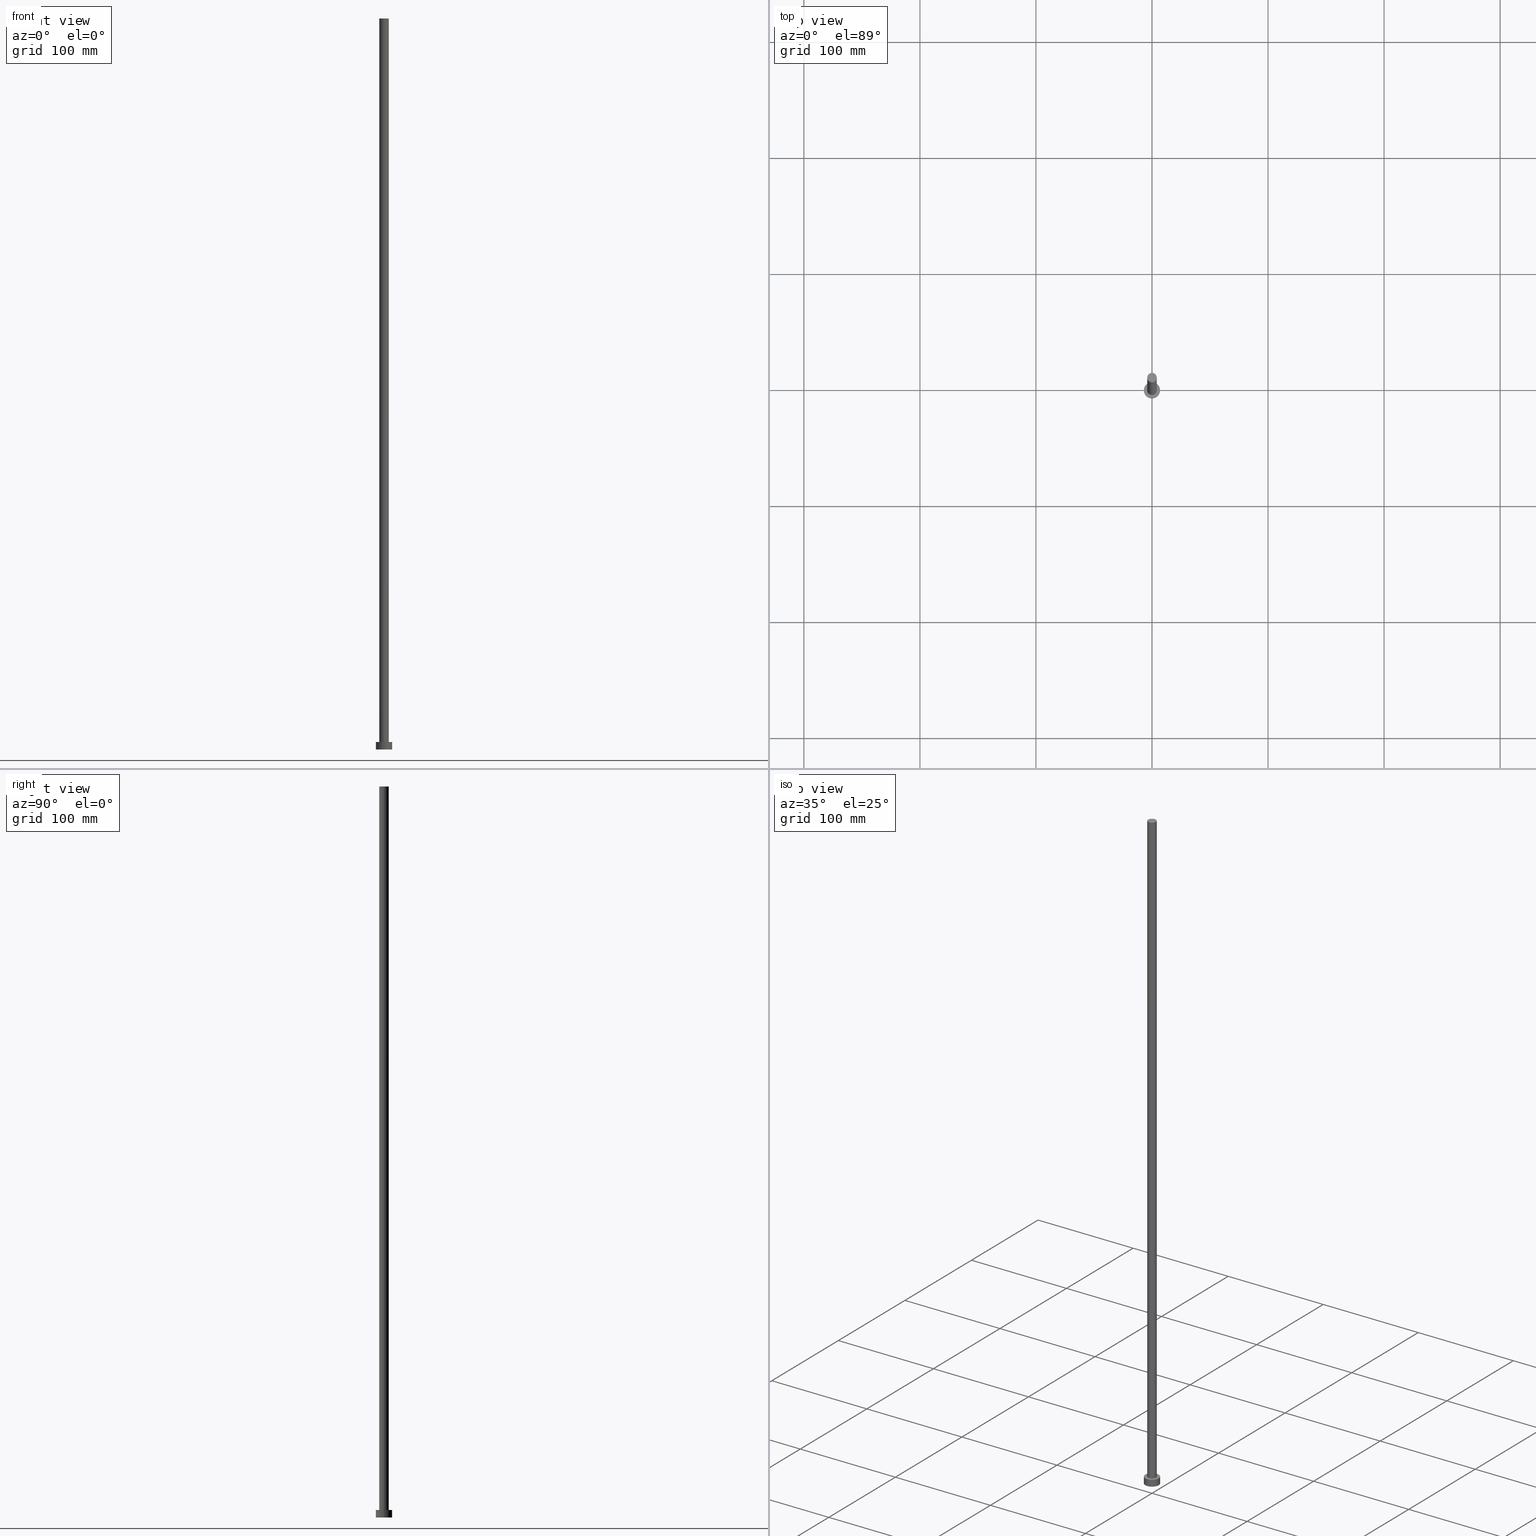
[diagram: canonical four-view strip — front | top / right | iso, engineering-drawing reading convention]
A machine part, canonical four-view strip (front | top / right | iso — engineering-drawing reading convention). The complete STEP part file that produces these views, byte-faithful:
ISO-10303-21;
HEADER;
FILE_DESCRIPTION (( 'STEP AP203' ),
    '1' );
FILE_NAME ('f5c1.STEP',
    '2023-02-13T14:16:04',
    ( '' ),
    ( '' ),
    'SwSTEP 2.0',
    'SolidWorks 2019',
    '' );
FILE_SCHEMA (( 'CONFIG_CONTROL_DESIGN' ));
ENDSEC;

DATA;
#1 = DIRECTION ( 'NONE',  ( 0.000000000000000000, 0.000000000000000000, 1.000000000000000000 ) ) ;
#2 = CARTESIAN_POINT ( 'NONE',  ( 0.000000000000000000, 0.000000000000000000, 0.000000000000000000 ) ) ;
#3 = EDGE_LOOP ( 'NONE', ( #176, #126, #90, #240 ) ) ;
#4 = CARTESIAN_POINT ( 'NONE',  ( -7.000000000000000000, 0.000000000000000000, 6.500000000000000000 ) ) ;
#5 = VERTEX_POINT ( 'NONE', #83 ) ;
#6 = PERSON_AND_ORGANIZATION ( #82, #40 ) ;
#7 = DIRECTION ( 'NONE',  ( -0.000000000000000000, -0.000000000000000000, -1.000000000000000000 ) ) ;
#8 = CIRCLE ( 'NONE', #249, 7.000000000000000000 ) ;
#9 = PERSON_AND_ORGANIZATION ( #82, #40 ) ;
#10 = CARTESIAN_POINT ( 'NONE',  ( 0.000000000000000000, 0.000000000000000000, 0.000000000000000000 ) ) ;
#11 = AXIS2_PLACEMENT_3D ( 'NONE', #147, #209, #33 ) ;
#12 = UNCERTAINTY_MEASURE_WITH_UNIT (LENGTH_MEASURE( 1.000000000000000082E-05 ), #20, 'distance_accuracy_value', 'NONE');
#13 = DIRECTION ( 'NONE',  ( 1.000000000000000000, 0.000000000000000000, 0.000000000000000000 ) ) ;
#14 = CARTESIAN_POINT ( 'NONE',  ( 7.000000000000000000, 8.572527594031471218E-16, 0.000000000000000000 ) ) ;
#15 = ORIENTED_EDGE ( 'NONE', *, *, #127, .T. ) ;
#16 = EDGE_CURVE ( 'NONE', #205, #178, #27, .T. ) ;
#17 = PERSON_AND_ORGANIZATION ( #82, #40 ) ;
#18 = CALENDAR_DATE ( 2023, 13, 2 ) ;
#19 = CYLINDRICAL_SURFACE ( 'NONE', #133, 4.099999999999999645 ) ;
#20 =( LENGTH_UNIT ( ) NAMED_UNIT ( * ) SI_UNIT ( .MILLI., .METRE. ) );
#21 = ORIENTED_EDGE ( 'NONE', *, *, #16, .F. ) ;
#22 = AXIS2_PLACEMENT_3D ( 'NONE', #219, #203, #47 ) ;
#23 = ORIENTED_EDGE ( 'NONE', *, *, #202, .F. ) ;
#24 = FACE_OUTER_BOUND ( 'NONE', #163, .T. ) ;
#25 = APPROVAL ( #28, 'NEUR�EN�' ) ;
#26 =( NAMED_UNIT ( * ) SI_UNIT ( $, .STERADIAN. ) SOLID_ANGLE_UNIT ( ) );
#27 = CIRCLE ( 'NONE', #239, 7.000000000000000000 ) ;
#28 = APPROVAL_STATUS ( 'not_yet_approved' ) ;
#29 = DESIGN_CONTEXT ( 'detailed design', #242, 'design' ) ;
#30 = ADVANCED_BREP_SHAPE_REPRESENTATION ( 'f5c1', ( #155, #70 ), #46 ) ;
#31 = DATE_TIME_ROLE ( 'classification_date' ) ;
#32 = COORDINATED_UNIVERSAL_TIME_OFFSET ( 1, 0, .AHEAD. ) ;
#33 = DIRECTION ( 'NONE',  ( 1.000000000000000000, 0.000000000000000000, 0.000000000000000000 ) ) ;
#34 = DIRECTION ( 'NONE',  ( -0.000000000000000000, -0.000000000000000000, -1.000000000000000000 ) ) ;
#35 = DIRECTION ( 'NONE',  ( 0.000000000000000000, 0.000000000000000000, 1.000000000000000000 ) ) ;
#36 = DIRECTION ( 'NONE',  ( 1.000000000000000000, 0.000000000000000000, 0.000000000000000000 ) ) ;
#37 = CC_DESIGN_PERSON_AND_ORGANIZATION_ASSIGNMENT ( #184, #250, ( #115 ) ) ;
#38 = CARTESIAN_POINT ( 'NONE',  ( 7.000000000000000000, 8.572527594031471218E-16, 6.500000000000000000 ) ) ;
#39 = CIRCLE ( 'NONE', #148, 4.099999999999999645 ) ;
#40 = ORGANIZATION ( 'NEUR�EN�', 'NEUR�EN�', '' ) ;
#41 = DIRECTION ( 'NONE',  ( 1.000000000000000000, 0.000000000000000000, 0.000000000000000000 ) ) ;
#42 = FACE_OUTER_BOUND ( 'NONE', #106, .T. ) ;
#43 = PERSON_AND_ORGANIZATION_ROLE ( 'creator' ) ;
#44 = EDGE_CURVE ( 'NONE', #179, #5, #139, .T. ) ;
#45 = ORIENTED_EDGE ( 'NONE', *, *, #114, .T. ) ;
#46 =( GEOMETRIC_REPRESENTATION_CONTEXT ( 3 ) GLOBAL_UNCERTAINTY_ASSIGNED_CONTEXT ( ( #12 ) ) GLOBAL_UNIT_ASSIGNED_CONTEXT ( ( #20, #216, #26 ) ) REPRESENTATION_CONTEXT ( 'NONE', 'WORKASPACE' ) );
#47 = DIRECTION ( 'NONE',  ( 1.000000000000000000, 0.000000000000000000, 0.000000000000000000 ) ) ;
#48 = DATE_AND_TIME ( #64, #207 ) ;
#49 = CARTESIAN_POINT ( 'NONE',  ( 7.000000000000000000, 8.572527594031471218E-16, 6.500000000000000000 ) ) ;
#50 = APPLICATION_PROTOCOL_DEFINITION ( 'international standard', 'config_control_design', 1994, #242 ) ;
#51 = ORIENTED_EDGE ( 'NONE', *, *, #185, .T. ) ;
#52 = DIRECTION ( 'NONE',  ( 0.000000000000000000, 0.000000000000000000, 1.000000000000000000 ) ) ;
#53 = PERSON_AND_ORGANIZATION_ROLE ( 'classification_officer' ) ;
#54 = DATE_AND_TIME ( #18, #135 ) ;
#55 = DIRECTION ( 'NONE',  ( 0.000000000000000000, 0.000000000000000000, 1.000000000000000000 ) ) ;
#56 = CIRCLE ( 'NONE', #11, 7.000000000000000000 ) ;
#57 = DIRECTION ( 'NONE',  ( -1.000000000000000000, 0.000000000000000000, 0.000000000000000000 ) ) ;
#58 = DIRECTION ( 'NONE',  ( 1.000000000000000000, 0.000000000000000000, 0.000000000000000000 ) ) ;
#59 = VERTEX_POINT ( 'NONE', #248 ) ;
#60 = CLOSED_SHELL ( 'NONE', ( #134, #65, #108, #212, #73, #63, #122 ) ) ;
#61 = DIRECTION ( 'NONE',  ( -1.000000000000000000, 0.000000000000000000, 0.000000000000000000 ) ) ;
#62 = LOCAL_TIME ( 15, 16, 4.000000000000000000, #119 ) ;
#63 = ADVANCED_FACE ( 'NONE', ( #132 ), #19, .T. ) ;
#64 = CALENDAR_DATE ( 2023, 13, 2 ) ;
#65 = ADVANCED_FACE ( 'NONE', ( #93 ), #189, .T. ) ;
#66 = PERSON_AND_ORGANIZATION ( #82, #40 ) ;
#67 = DIRECTION ( 'NONE',  ( 0.000000000000000000, 0.000000000000000000, 1.000000000000000000 ) ) ;
#68 = PLANE ( 'NONE',  #218 ) ;
#69 = LOCAL_TIME ( 15, 16, 4.000000000000000000, #32 ) ;
#70 = AXIS2_PLACEMENT_3D ( 'NONE', #210, #52, #13 ) ;
#71 = CARTESIAN_POINT ( 'NONE',  ( 0.000000000000000000, 0.000000000000000000, 6.500000000000000000 ) ) ;
#72 = AXIS2_PLACEMENT_3D ( 'NONE', #71, #35, #41 ) ;
#73 = ADVANCED_FACE ( 'NONE', ( #159 ), #186, .F. ) ;
#74 = DIRECTION ( 'NONE',  ( -1.000000000000000000, 0.000000000000000000, 0.000000000000000000 ) ) ;
#75 = CIRCLE ( 'NONE', #229, 7.000000000000000000 ) ;
#76 = COORDINATED_UNIVERSAL_TIME_OFFSET ( 1, 0, .AHEAD. ) ;
#77 = ORIENTED_EDGE ( 'NONE', *, *, #185, .F. ) ;
#78 = EDGE_LOOP ( 'NONE', ( #21, #117 ) ) ;
#79 = EDGE_LOOP ( 'NONE', ( #194, #102, #196, #237 ) ) ;
#80 = EDGE_CURVE ( 'NONE', #5, #179, #252, .T. ) ;
#81 = VECTOR ( 'NONE', #34, 1000.000000000000000 ) ;
#82 = PERSON ( 'NEUR�EN�', 'NEUR�EN�', 'NEUR�EN�', ('NEUR�EN�'), ('NEUR�EN�'), ('NEUR�EN�') ) ;
#83 = CARTESIAN_POINT ( 'NONE',  ( -4.099999999999999645, 0.000000000000000000, 6.500000000000000000 ) ) ;
#84 = APPROVAL_DATE_TIME ( #140, #25 ) ;
#85 = DIRECTION ( 'NONE',  ( 1.000000000000000000, 0.000000000000000000, -0.000000000000000000 ) ) ;
#86 = SECURITY_CLASSIFICATION_LEVEL ( 'unclassified' ) ;
#87 = DIRECTION ( 'NONE',  ( -1.000000000000000000, 0.000000000000000000, 0.000000000000000000 ) ) ;
#88 = APPROVAL_DATE_TIME ( #152, #217 ) ;
#89 = CC_DESIGN_PERSON_AND_ORGANIZATION_ASSIGNMENT ( #6, #104, ( #113 ) ) ;
#90 = ORIENTED_EDGE ( 'NONE', *, *, #151, .T. ) ;
#91 = CARTESIAN_POINT ( 'NONE',  ( 4.099999999999999645, 5.021051876504146399E-16, 6.500000000000000000 ) ) ;
#92 = CALENDAR_DATE ( 2023, 13, 2 ) ;
#93 = FACE_OUTER_BOUND ( 'NONE', #79, .T. ) ;
#94 = AXIS2_PLACEMENT_3D ( 'NONE', #236, #255, #74 ) ;
#95 = DIRECTION ( 'NONE',  ( -0.000000000000000000, -0.000000000000000000, -1.000000000000000000 ) ) ;
#96 = CALENDAR_DATE ( 2023, 13, 2 ) ;
#97 = APPROVAL_ROLE ( '' ) ;
#98 = APPROVAL ( #144, 'NEUR�EN�' ) ;
#99 = CARTESIAN_POINT ( 'NONE',  ( 0.000000000000000000, 0.000000000000000000, 6.500000000000000000 ) ) ;
#100 = ORIENTED_EDGE ( 'NONE', *, *, #44, .F. ) ;
#101 = CC_DESIGN_APPROVAL ( #25, ( #224 ) ) ;
#102 = ORIENTED_EDGE ( 'NONE', *, *, #202, .T. ) ;
#103 = COORDINATED_UNIVERSAL_TIME_OFFSET ( 1, 0, .AHEAD. ) ;
#104 = PERSON_AND_ORGANIZATION_ROLE ( 'design_supplier' ) ;
#105 = CARTESIAN_POINT ( 'NONE',  ( -4.099999999999999645, 0.000000000000000000, 630.0000000000000000 ) ) ;
#106 = EDGE_LOOP ( 'NONE', ( #234, #45 ) ) ;
#107 = LINE ( 'NONE', #138, #158 ) ;
#108 = ADVANCED_FACE ( 'NONE', ( #141 ), #223, .T. ) ;
#109 = CARTESIAN_POINT ( 'NONE',  ( 4.099999999999999645, 5.021051876504146399E-16, 630.0000000000000000 ) ) ;
#110 = CARTESIAN_POINT ( 'NONE',  ( 0.000000000000000000, 0.000000000000000000, 630.0000000000000000 ) ) ;
#111 = APPLICATION_PROTOCOL_DEFINITION ( 'international standard', 'config_control_design', 1994, #230 ) ;
#112 = VECTOR ( 'NONE', #233, 1000.000000000000000 ) ;
#113 = PRODUCT_DEFINITION_FORMATION_WITH_SPECIFIED_SOURCE ( 'LIBOVOLN�', '', #115, .NOT_KNOWN. ) ;
#114 = EDGE_CURVE ( 'NONE', #121, #59, #243, .T. ) ;
#115 = PRODUCT ( 'f5c1', 'f5c1', '', ( #211 ) ) ;
#116 = EDGE_LOOP ( 'NONE', ( #23, #77, #15, #171 ) ) ;
#117 = ORIENTED_EDGE ( 'NONE', *, *, #208, .F. ) ;
#118 = DIRECTION ( 'NONE',  ( 1.000000000000000000, 0.000000000000000000, 0.000000000000000000 ) ) ;
#119 = COORDINATED_UNIVERSAL_TIME_OFFSET ( 1, 0, .AHEAD. ) ;
#120 = VERTEX_POINT ( 'NONE', #4 ) ;
#121 = VERTEX_POINT ( 'NONE', #220 ) ;
#122 = ADVANCED_FACE ( 'NONE', ( #42 ), #68, .T. ) ;
#123 = SECURITY_CLASSIFICATION ( '', '', #86 ) ;
#124 = CARTESIAN_POINT ( 'NONE',  ( 0.000000000000000000, 0.000000000000000000, 6.500000000000000000 ) ) ;
#125 = EDGE_CURVE ( 'NONE', #165, #120, #56, .T. ) ;
#126 = ORIENTED_EDGE ( 'NONE', *, *, #245, .F. ) ;
#127 = EDGE_CURVE ( 'NONE', #120, #205, #107, .T. ) ;
#128 = DIRECTION ( 'NONE',  ( 1.000000000000000000, 0.000000000000000000, 0.000000000000000000 ) ) ;
#129 = AXIS2_PLACEMENT_3D ( 'NONE', #110, #7, #87 ) ;
#130 = AXIS2_PLACEMENT_3D ( 'NONE', #99, #162, #61 ) ;
#131 = LINE ( 'NONE', #38, #187 ) ;
#132 = FACE_OUTER_BOUND ( 'NONE', #3, .T. ) ;
#133 = AXIS2_PLACEMENT_3D ( 'NONE', #193, #95, #57 ) ;
#134 = ADVANCED_FACE ( 'NONE', ( #232 ), #247, .T. ) ;
#135 = LOCAL_TIME ( 15, 16, 4.000000000000000000, #76 ) ;
#136 = ORIENTED_EDGE ( 'NONE', *, *, #44, .T. ) ;
#137 = CARTESIAN_POINT ( 'NONE',  ( -7.000000000000000000, 0.000000000000000000, 0.000000000000000000 ) ) ;
#138 = CARTESIAN_POINT ( 'NONE',  ( -7.000000000000000000, 0.000000000000000000, 6.500000000000000000 ) ) ;
#139 = CIRCLE ( 'NONE', #161, 4.099999999999999645 ) ;
#140 = DATE_AND_TIME ( #96, #221 ) ;
#141 = FACE_OUTER_BOUND ( 'NONE', #116, .T. ) ;
#142 = CC_DESIGN_PERSON_AND_ORGANIZATION_ASSIGNMENT ( #17, #156, ( #113 ) ) ;
#143 = LINE ( 'NONE', #105, #81 ) ;
#144 = APPROVAL_STATUS ( 'not_yet_approved' ) ;
#145 = DIRECTION ( 'NONE',  ( 0.000000000000000000, 0.000000000000000000, 1.000000000000000000 ) ) ;
#146 = AXIS2_PLACEMENT_3D ( 'NONE', #124, #67, #85 ) ;
#147 = CARTESIAN_POINT ( 'NONE',  ( 0.000000000000000000, 0.000000000000000000, 6.500000000000000000 ) ) ;
#148 = AXIS2_PLACEMENT_3D ( 'NONE', #235, #195, #160 ) ;
#149 = PERSON_AND_ORGANIZATION ( #82, #40 ) ;
#150 = AXIS2_PLACEMENT_3D ( 'NONE', #2, #180, #183 ) ;
#151 = EDGE_CURVE ( 'NONE', #59, #5, #143, .T. ) ;
#152 = DATE_AND_TIME ( #92, #69 ) ;
#153 = CARTESIAN_POINT ( 'NONE',  ( 0.000000000000000000, 0.000000000000000000, 6.500000000000000000 ) ) ;
#154 = CC_DESIGN_APPROVAL ( #98, ( #123 ) ) ;
#155 = MANIFOLD_SOLID_BREP ( 'P�idat vysunut�m3', #60 ) ;
#156 = PERSON_AND_ORGANIZATION_ROLE ( 'creator' ) ;
#157 = ORIENTED_EDGE ( 'NONE', *, *, #125, .T. ) ;
#158 = VECTOR ( 'NONE', #172, 1000.000000000000000 ) ;
#159 = FACE_OUTER_BOUND ( 'NONE', #78, .T. ) ;
#160 = DIRECTION ( 'NONE',  ( 1.000000000000000000, 0.000000000000000000, 0.000000000000000000 ) ) ;
#161 = AXIS2_PLACEMENT_3D ( 'NONE', #164, #244, #36 ) ;
#162 = DIRECTION ( 'NONE',  ( -0.000000000000000000, -0.000000000000000000, -1.000000000000000000 ) ) ;
#163 = EDGE_LOOP ( 'NONE', ( #51, #157 ) ) ;
#164 = CARTESIAN_POINT ( 'NONE',  ( 0.000000000000000000, 0.000000000000000000, 6.500000000000000000 ) ) ;
#165 = VERTEX_POINT ( 'NONE', #49 ) ;
#166 = CARTESIAN_POINT ( 'NONE',  ( 0.000000000000000000, 0.000000000000000000, 630.0000000000000000 ) ) ;
#167 = EDGE_LOOP ( 'NONE', ( #215, #190, #136, #173 ) ) ;
#168 = PERSON_AND_ORGANIZATION ( #82, #40 ) ;
#169 = APPROVAL_ROLE ( '' ) ;
#170 = DIRECTION ( 'NONE',  ( 1.000000000000000000, 0.000000000000000000, -0.000000000000000000 ) ) ;
#171 = ORIENTED_EDGE ( 'NONE', *, *, #16, .T. ) ;
#172 = DIRECTION ( 'NONE',  ( -0.000000000000000000, -0.000000000000000000, -1.000000000000000000 ) ) ;
#173 = ORIENTED_EDGE ( 'NONE', *, *, #151, .F. ) ;
#174 = CC_DESIGN_SECURITY_CLASSIFICATION ( #123, ( #113 ) ) ;
#175 = APPROVAL_PERSON_ORGANIZATION ( #66, #98, #254 ) ;
#176 = ORIENTED_EDGE ( 'NONE', *, *, #199, .F. ) ;
#177 = CARTESIAN_POINT ( 'NONE',  ( 0.000000000000000000, 0.000000000000000000, 0.000000000000000000 ) ) ;
#178 = VERTEX_POINT ( 'NONE', #14 ) ;
#179 = VERTEX_POINT ( 'NONE', #91 ) ;
#180 = DIRECTION ( 'NONE',  ( 0.000000000000000000, 0.000000000000000000, 1.000000000000000000 ) ) ;
#181 = APPROVAL_PERSON_ORGANIZATION ( #225, #25, #97 ) ;
#182 = COORDINATED_UNIVERSAL_TIME_OFFSET ( 1, 0, .AHEAD. ) ;
#183 = DIRECTION ( 'NONE',  ( 1.000000000000000000, 0.000000000000000000, -0.000000000000000000 ) ) ;
#184 = PERSON_AND_ORGANIZATION ( #82, #40 ) ;
#185 = EDGE_CURVE ( 'NONE', #120, #165, #75, .T. ) ;
#186 = PLANE ( 'NONE',  #150 ) ;
#187 = VECTOR ( 'NONE', #192, 1000.000000000000000 ) ;
#188 = CC_DESIGN_APPROVAL ( #217, ( #113 ) ) ;
#189 = CYLINDRICAL_SURFACE ( 'NONE', #94, 7.000000000000000000 ) ;
#190 = ORIENTED_EDGE ( 'NONE', *, *, #199, .T. ) ;
#191 = SHAPE_DEFINITION_REPRESENTATION ( #222, #30 ) ;
#192 = DIRECTION ( 'NONE',  ( -0.000000000000000000, -0.000000000000000000, -1.000000000000000000 ) ) ;
#193 = CARTESIAN_POINT ( 'NONE',  ( 0.000000000000000000, 0.000000000000000000, 630.0000000000000000 ) ) ;
#194 = ORIENTED_EDGE ( 'NONE', *, *, #125, .F. ) ;
#195 = DIRECTION ( 'NONE',  ( 0.000000000000000000, 0.000000000000000000, 1.000000000000000000 ) ) ;
#196 = ORIENTED_EDGE ( 'NONE', *, *, #208, .T. ) ;
#197 = FACE_BOUND ( 'NONE', #201, .T. ) ;
#198 = CALENDAR_DATE ( 2023, 13, 2 ) ;
#199 = EDGE_CURVE ( 'NONE', #121, #179, #214, .T. ) ;
#200 = ORIENTED_EDGE ( 'NONE', *, *, #80, .F. ) ;
#201 = EDGE_LOOP ( 'NONE', ( #200, #100 ) ) ;
#202 = EDGE_CURVE ( 'NONE', #165, #178, #131, .T. ) ;
#203 = DIRECTION ( 'NONE',  ( 0.000000000000000000, 0.000000000000000000, 1.000000000000000000 ) ) ;
#204 = CC_DESIGN_DATE_AND_TIME_ASSIGNMENT ( #48, #31, ( #123 ) ) ;
#205 = VERTEX_POINT ( 'NONE', #137 ) ;
#206 = APPROVAL_PERSON_ORGANIZATION ( #9, #217, #169 ) ;
#207 = LOCAL_TIME ( 15, 16, 4.000000000000000000, #182 ) ;
#208 = EDGE_CURVE ( 'NONE', #178, #205, #8, .T. ) ;
#209 = DIRECTION ( 'NONE',  ( 0.000000000000000000, 0.000000000000000000, 1.000000000000000000 ) ) ;
#210 = CARTESIAN_POINT ( 'NONE',  ( 0.000000000000000000, 0.000000000000000000, 0.000000000000000000 ) ) ;
#211 = MECHANICAL_CONTEXT ( 'NONE', #230, 'mechanical' ) ;
#212 = ADVANCED_FACE ( 'NONE', ( #197, #24 ), #241, .T. ) ;
#213 = APPROVAL_DATE_TIME ( #54, #98 ) ;
#214 = LINE ( 'NONE', #109, #112 ) ;
#215 = ORIENTED_EDGE ( 'NONE', *, *, #114, .F. ) ;
#216 =( NAMED_UNIT ( * ) PLANE_ANGLE_UNIT ( ) SI_UNIT ( $, .RADIAN. ) );
#217 = APPROVAL ( #253, 'NEUR�EN�' ) ;
#218 = AXIS2_PLACEMENT_3D ( 'NONE', #166, #145, #170 ) ;
#219 = CARTESIAN_POINT ( 'NONE',  ( 0.000000000000000000, 0.000000000000000000, 630.0000000000000000 ) ) ;
#220 = CARTESIAN_POINT ( 'NONE',  ( 4.099999999999999645, 5.021051876504146399E-16, 630.0000000000000000 ) ) ;
#221 = LOCAL_TIME ( 15, 16, 4.000000000000000000, #103 ) ;
#222 = PRODUCT_DEFINITION_SHAPE ( 'NONE', 'NONE',  #224 ) ;
#223 = CYLINDRICAL_SURFACE ( 'NONE', #130, 7.000000000000000000 ) ;
#224 = PRODUCT_DEFINITION ( 'NEZN�M�', '', #113, #29 ) ;
#225 = PERSON_AND_ORGANIZATION ( #82, #40 ) ;
#226 = DATE_TIME_ROLE ( 'creation_date' ) ;
#227 = DIRECTION ( 'NONE',  ( 0.000000000000000000, 0.000000000000000000, 1.000000000000000000 ) ) ;
#228 = CC_DESIGN_DATE_AND_TIME_ASSIGNMENT ( #238, #226, ( #224 ) ) ;
#229 = AXIS2_PLACEMENT_3D ( 'NONE', #153, #55, #58 ) ;
#230 = APPLICATION_CONTEXT ( 'configuration controlled 3d designs of mechanical parts and assemblies' ) ;
#231 = CC_DESIGN_PERSON_AND_ORGANIZATION_ASSIGNMENT ( #168, #53, ( #123 ) ) ;
#232 = FACE_OUTER_BOUND ( 'NONE', #167, .T. ) ;
#233 = DIRECTION ( 'NONE',  ( -0.000000000000000000, -0.000000000000000000, -1.000000000000000000 ) ) ;
#234 = ORIENTED_EDGE ( 'NONE', *, *, #245, .T. ) ;
#235 = CARTESIAN_POINT ( 'NONE',  ( 0.000000000000000000, 0.000000000000000000, 630.0000000000000000 ) ) ;
#236 = CARTESIAN_POINT ( 'NONE',  ( 0.000000000000000000, 0.000000000000000000, 6.500000000000000000 ) ) ;
#237 = ORIENTED_EDGE ( 'NONE', *, *, #127, .F. ) ;
#238 = DATE_AND_TIME ( #198, #62 ) ;
#239 = AXIS2_PLACEMENT_3D ( 'NONE', #10, #227, #128 ) ;
#240 = ORIENTED_EDGE ( 'NONE', *, *, #80, .T. ) ;
#241 = PLANE ( 'NONE',  #146 ) ;
#242 = APPLICATION_CONTEXT ( 'configuration controlled 3d designs of mechanical parts and assemblies' ) ;
#243 = CIRCLE ( 'NONE', #22, 4.099999999999999645 ) ;
#244 = DIRECTION ( 'NONE',  ( 0.000000000000000000, 0.000000000000000000, 1.000000000000000000 ) ) ;
#245 = EDGE_CURVE ( 'NONE', #59, #121, #39, .T. ) ;
#246 = PRODUCT_RELATED_PRODUCT_CATEGORY ( 'detail', '', ( #115 ) ) ;
#247 = CYLINDRICAL_SURFACE ( 'NONE', #129, 4.099999999999999645 ) ;
#248 = CARTESIAN_POINT ( 'NONE',  ( -4.099999999999999645, 0.000000000000000000, 630.0000000000000000 ) ) ;
#249 = AXIS2_PLACEMENT_3D ( 'NONE', #177, #1, #118 ) ;
#250 = PERSON_AND_ORGANIZATION_ROLE ( 'design_owner' ) ;
#251 = CC_DESIGN_PERSON_AND_ORGANIZATION_ASSIGNMENT ( #149, #43, ( #224 ) ) ;
#252 = CIRCLE ( 'NONE', #72, 4.099999999999999645 ) ;
#253 = APPROVAL_STATUS ( 'not_yet_approved' ) ;
#254 = APPROVAL_ROLE ( '' ) ;
#255 = DIRECTION ( 'NONE',  ( -0.000000000000000000, -0.000000000000000000, -1.000000000000000000 ) ) ;
ENDSEC;
END-ISO-10303-21;
